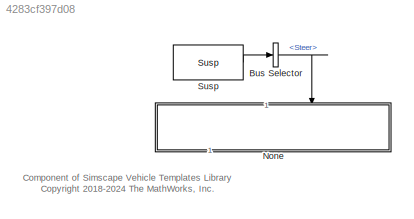
MODEL slx_4283cf397d08
KIND library
CONFIG AbsTol = auto
CONFIG EnableMultiTasking = off
CONFIG FixedStep = auto
CONFIG MaxStep = auto
CONFIG MinStep = auto
CONFIG RelTol = 1e-3
CONFIG SampleTimeConstraint = Unconstrained
CONFIG SolverName = VariableStepAuto
CONFIG StartTime = 0.0
CONFIG StopTime = 10.0
BLOCK [BusSelector] Bus Selector
  OutputSignals = Steer
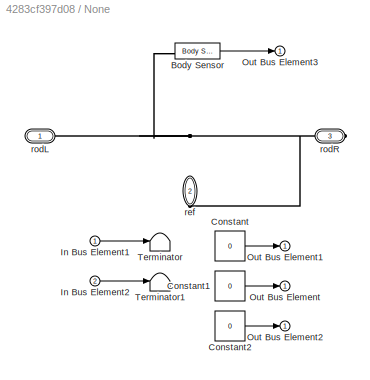
BLOCK [SubSystem] None
  NameLocation = left
  VariantControl = None
BLOCK [Reference] None/Body Sensor  REF=Body_Utilities/Body Sensor
  SourceBlock = Body_Utilities/Body Sensor
BLOCK [Constant] None/Constant
  Value = 0
BLOCK [Constant] None/Constant1
  Value = 0
BLOCK [Constant] None/Constant2
  Value = 0
BLOCK [Inport] None/In Bus Element1
BLOCK [Inport] None/In Bus Element2
  Port = 2
BLOCK [Outport] None/Out Bus Element
  VectorParamsAs1DForOutWhenUnconnected = off
BLOCK [Outport] None/Out Bus Element1
  VectorParamsAs1DForOutWhenUnconnected = off
BLOCK [Outport] None/Out Bus Element2
  VectorParamsAs1DForOutWhenUnconnected = off
BLOCK [Outport] None/Out Bus Element3
  VectorParamsAs1DForOutWhenUnconnected = off
BLOCK [Terminator] None/Terminator
BLOCK [Terminator] None/Terminator1
BLOCK [PMIOPort] None/ref
  NameLocation = right
  Port = 2
  Side = Right
BLOCK [PMIOPort] None/rodL
  Side = Right
BLOCK [PMIOPort] None/rodR
  Port = 3
  Side = Right
BLOCK [Reference] Susp  REF=Vehicle_Inputs/Control Bus/Susp
  SourceBlock = Vehicle_Inputs/Control Bus/Susp
ANNOTATION (root): Component of Simscape Vehicle Templates Library <copyright redacted>
LINE Bus Selector:1 -> None:2
LINE None/Body Sensor:1 -> None/Out Bus Element3:1
LINE None/Constant1:1 -> None/Out Bus Element:1
LINE None/Constant2:1 -> None/Out Bus Element2:1
LINE None/Constant:1 -> None/Out Bus Element1:1
LINE None/In Bus Element1:1 -> None/Terminator:1
LINE None/In Bus Element2:1 -> None/Terminator1:1
LINE Susp:1 -> Bus Selector:1
PNET net1: None/Body Sensor:LConn1 -- None/ref:RConn1 -- None/rodL:RConn1 -- None/rodR:RConn1
note: PNET lines group multi-terminal physical nets as a canonical sorted terminal list (undirected conserving connections); 2-terminal nets keep the pairwise PLINE form
